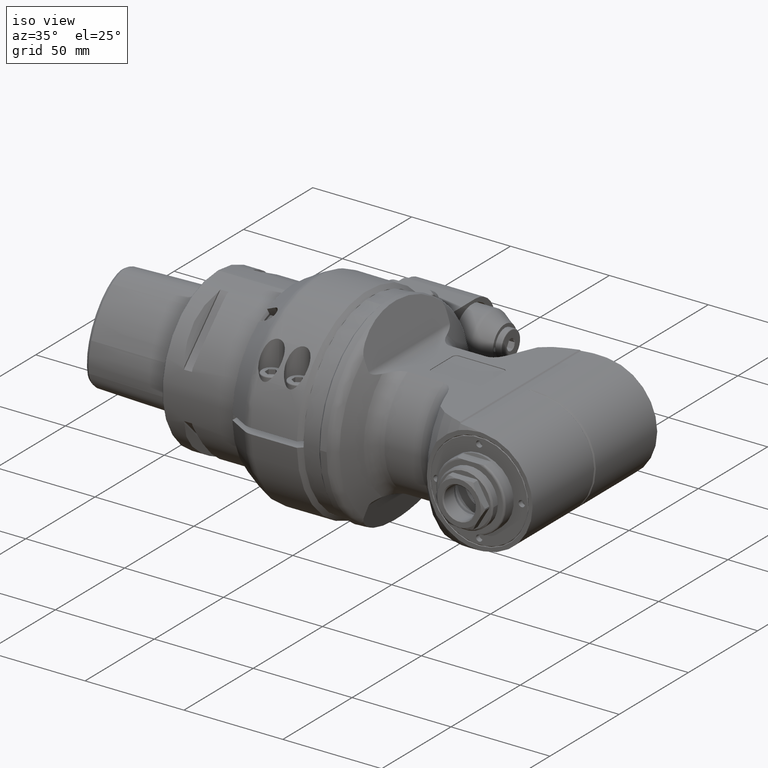
[diagram: clean part render]
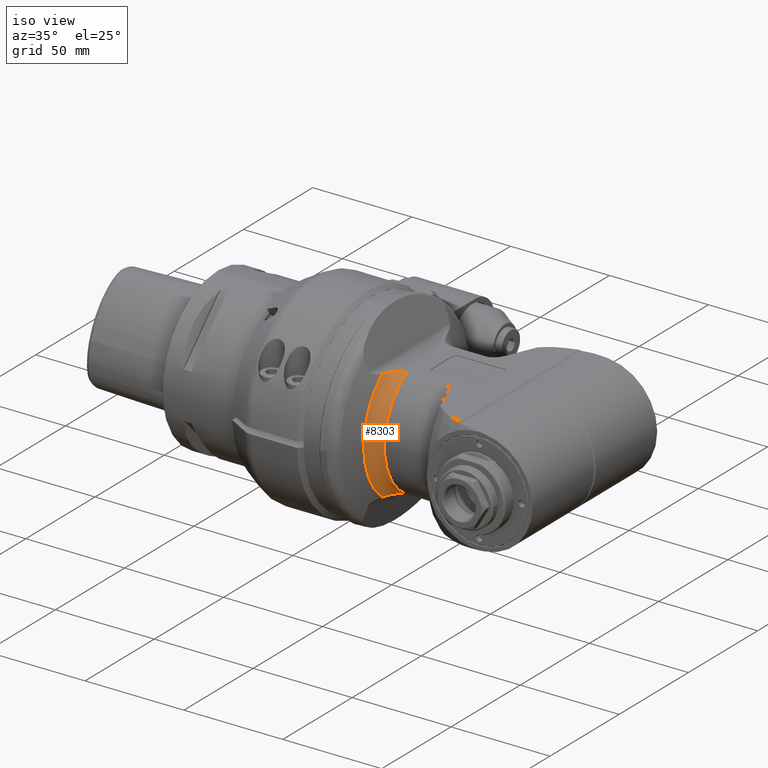
[diagram: same view with one face highlighted and labeled with its STEP entity id]
A machine part, iso view. The second image highlights one B-rep face of the part: STEP entity #8303.
In plain terms, the highlighted toroidal blend (fillet) surface has major radius 40 mm and minor (blend) radius 8 mm.
Its self-contained STEP definition (entity closure, byte-faithful):
#188=TOROIDAL_SURFACE('',#8887,40.,8.);
#415=B_SPLINE_CURVE_WITH_KNOTS('',3,(#12308,#12309,#12310,#12311,#12312,
#12313,#12314,#12315,#12316,#12317,#12318,#12319),.UNSPECIFIED.,.F.,.F.,
(4,2,2,2,2,4),(-2.93597407218818,-2.82337724519284,-2.69378102431655,-2.51186335157645,
-2.32994567883634,-2.12339512890436),.UNSPECIFIED.);
#422=B_SPLINE_CURVE_WITH_KNOTS('',3,(#12455,#12456,#12457,#12458),
 .UNSPECIFIED.,.F.,.F.,(4,4),(-4.28837743495635,-4.06515165870551),
 .UNSPECIFIED.);
#423=B_SPLINE_CURVE_WITH_KNOTS('',3,(#12465,#12466,#12467,#12468,#12469,
#12470),.UNSPECIFIED.,.F.,.F.,(4,2,4),(1.62729685649767,1.71536395114816,
1.75183119798568),.UNSPECIFIED.);
#424=B_SPLINE_CURVE_WITH_KNOTS('',3,(#12471,#12472,#12473,#12474,#12475,
#12476,#12477,#12478,#12479,#12480,#12481,#12482),.UNSPECIFIED.,.F.,.F.,
(4,2,2,2,2,4),(-2.93602857360432,-2.81022163538033,-2.66127008993984,-2.44574033067297,
-2.2302105714061,-2.12135907273542),.UNSPECIFIED.);
#703=CIRCLE('',#8888,32.);
#704=CIRCLE('',#8889,36.61905390607);
#1117=FACE_OUTER_BOUND('',#1637,.T.);
#1637=EDGE_LOOP('',(#5536,#5537,#5538,#5539,#5540,#5541));
#3372=VERTEX_POINT('',#12304);
#3374=VERTEX_POINT('',#12307);
#3396=VERTEX_POINT('',#12438);
#3397=VERTEX_POINT('',#12460);
#3398=VERTEX_POINT('',#12462);
#3399=VERTEX_POINT('',#12464);
#4218=EDGE_CURVE('',#3374,#3372,#415,.T.);
#4243=EDGE_CURVE('',#3396,#3372,#422,.T.);
#4244=EDGE_CURVE('',#3397,#3374,#703,.T.);
#4245=EDGE_CURVE('',#3396,#3398,#704,.T.);
#4246=EDGE_CURVE('',#3398,#3399,#423,.T.);
#4247=EDGE_CURVE('',#3397,#3399,#424,.T.);
#5536=ORIENTED_EDGE('',*,*,#4244,.T.);
#5537=ORIENTED_EDGE('',*,*,#4218,.T.);
#5538=ORIENTED_EDGE('',*,*,#4243,.F.);
#5539=ORIENTED_EDGE('',*,*,#4245,.T.);
#5540=ORIENTED_EDGE('',*,*,#4246,.T.);
#5541=ORIENTED_EDGE('',*,*,#4247,.F.);
#8303=ADVANCED_FACE('',(#1117),#188,.F.);
#8887=AXIS2_PLACEMENT_3D('',#12459,#9863,#9864);
#8888=AXIS2_PLACEMENT_3D('',#12461,#9865,#9866);
#8889=AXIS2_PLACEMENT_3D('',#12463,#9867,#9868);
#9863=DIRECTION('center_axis',(-1.,0.,0.));
#9864=DIRECTION('ref_axis',(0.,-1.,-1.22464679914735E-16));
#9865=DIRECTION('center_axis',(-1.,0.,0.));
#9866=DIRECTION('ref_axis',(0.,-0.484122918275906,-0.875000000000012));
#9867=DIRECTION('center_axis',(1.,0.,0.));
#9868=DIRECTION('ref_axis',(0.,-0.639797587775472,0.768543457897266));
#12304=CARTESIAN_POINT('',(26.80083020115,-20.88509764292,27.99999999999));
#12307=CARTESIAN_POINT('',(32.99009987301,-15.49193338483,28.));
#12308=CARTESIAN_POINT('Ctrl Pts',(32.99009987301,-15.4919333848297,28.));
#12309=CARTESIAN_POINT('Ctrl Pts',(32.6147771163589,-15.4919333848297,28.));
#12310=CARTESIAN_POINT('Ctrl Pts',(32.1698889724911,-15.5620993782773,28.));
#12311=CARTESIAN_POINT('Ctrl Pts',(31.3977248933945,-15.7977099228234,28.));
#12312=CARTESIAN_POINT('Ctrl Pts',(30.9310586317008,-16.0234209939818,28.));
#12313=CARTESIAN_POINT('Ctrl Pts',(30.053798895377,-16.5789816504194,28.));
#12314=CARTESIAN_POINT('Ctrl Pts',(29.550628761613,-17.0081024201193,28.));
#12315=CARTESIAN_POINT('Ctrl Pts',(28.6408811523053,-17.9652022129463,28.));
#12316=CARTESIAN_POINT('Ctrl Pts',(28.233192022949,-18.4921239661789,28.));
#12317=CARTESIAN_POINT('Ctrl Pts',(27.5057921800039,-19.563403638085,28.));
#12318=CARTESIAN_POINT('Ctrl Pts',(27.1316615896629,-20.2094567222412,28.));
#12319=CARTESIAN_POINT('Ctrl Pts',(26.8008302011161,-20.8850976429034,28.));
#12438=CARTESIAN_POINT('',(25.73963757672,-23.42878235573,28.1433343139));
#12455=CARTESIAN_POINT('Ctrl Pts',(25.7396375767161,-23.4287823557287,28.1433343139008));
#12456=CARTESIAN_POINT('Ctrl Pts',(26.0321978822115,-22.5448627958057,28.0628339896322));
#12457=CARTESIAN_POINT('Ctrl Pts',(26.3924447197747,-21.7191235308927,27.99999999998));
#12458=CARTESIAN_POINT('Ctrl Pts',(26.8008302011161,-20.8850976429034,28.));
#12459=CARTESIAN_POINT('Origin',(32.99009987301,0.,0.));
#12460=CARTESIAN_POINT('',(32.99009987301,-15.49193338483,-28.));
#12461=CARTESIAN_POINT('Origin',(32.99009987301,0.,0.));
#12462=CARTESIAN_POINT('',(25.73963757705,-23.42878235482,-28.1433343138));
#12463=CARTESIAN_POINT('Origin',(25.73963757672,0.,0.));
#12464=CARTESIAN_POINT('',(26.80083020092,-20.88509764331,-28.));
#12465=CARTESIAN_POINT('Ctrl Pts',(25.7396375770206,-23.4287823548087,-28.143334313817));
#12466=CARTESIAN_POINT('Ctrl Pts',(25.9417492668938,-22.8181373952048,-28.0877216546058));
#12467=CARTESIAN_POINT('Ctrl Pts',(26.1821006615721,-22.2190845095784,-28.0386263368573));
#12468=CARTESIAN_POINT('Ctrl Pts',(26.5687080521752,-21.3664158943553,-28.0051242811777));
#12469=CARTESIAN_POINT('Ctrl Pts',(26.6841485560425,-21.1233909150549,-28.0000000000001));
#12470=CARTESIAN_POINT('Ctrl Pts',(26.8008302009176,-20.8850976433088,-28.));
#12471=CARTESIAN_POINT('Ctrl Pts',(32.99009987301,-15.4919333848297,-28.));
#12472=CARTESIAN_POINT('Ctrl Pts',(32.5707434122634,-15.4919333848297,-28.));
#12473=CARTESIAN_POINT('Ctrl Pts',(32.0752042743193,-15.5795640532649,-28.));
#12474=CARTESIAN_POINT('Ctrl Pts',(31.2080074002573,-15.8741350537825,-28.));
#12475=CARTESIAN_POINT('Ctrl Pts',(30.6847533920019,-16.1590740807169,-28.));
#12476=CARTESIAN_POINT('Ctrl Pts',(29.69452279622,-16.8630037215125,-28.));
#12477=CARTESIAN_POINT('Ctrl Pts',(29.1325458604225,-17.407552366296,-28.));
#12478=CARTESIAN_POINT('Ctrl Pts',(28.1323512917126,-18.608539452852,-28.));
#12479=CARTESIAN_POINT('Ctrl Pts',(27.6932483097344,-19.2642402902718,-28.));
#12480=CARTESIAN_POINT('Ctrl Pts',(27.1514292838462,-20.1999639756728,-28.));
#12481=CARTESIAN_POINT('Ctrl Pts',(26.9719387319417,-20.5356509781966,-28.));
#12482=CARTESIAN_POINT('Ctrl Pts',(26.8008302009176,-20.8850976433088,-28.));